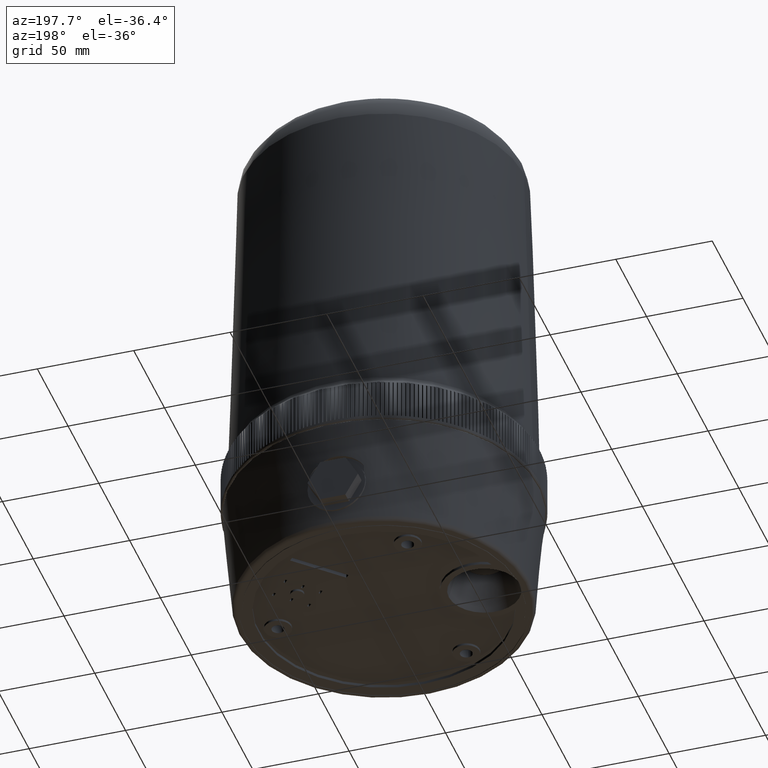
[diagram: clean part render]
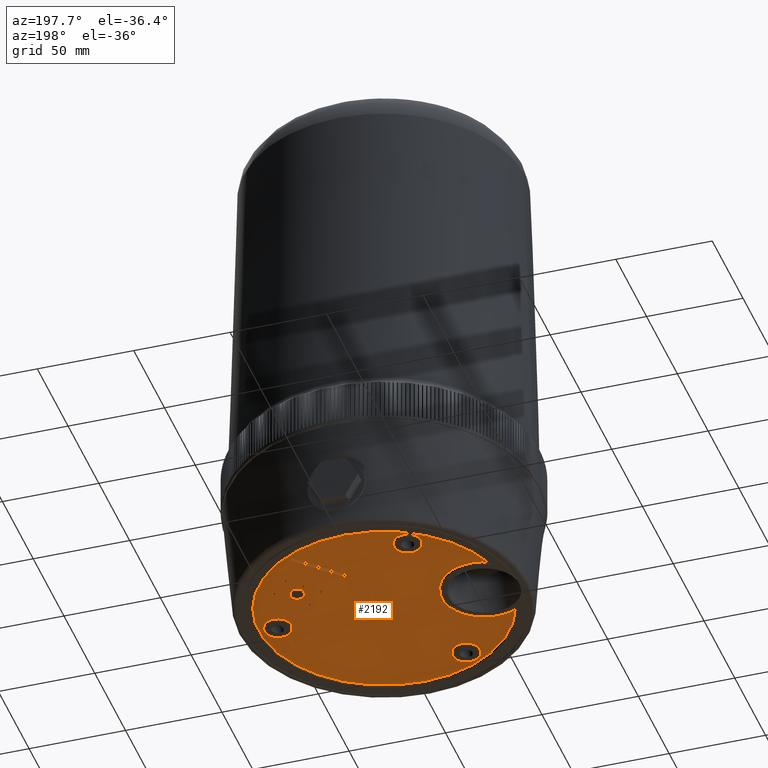
[diagram: same view with one face highlighted and labeled with its STEP entity id]
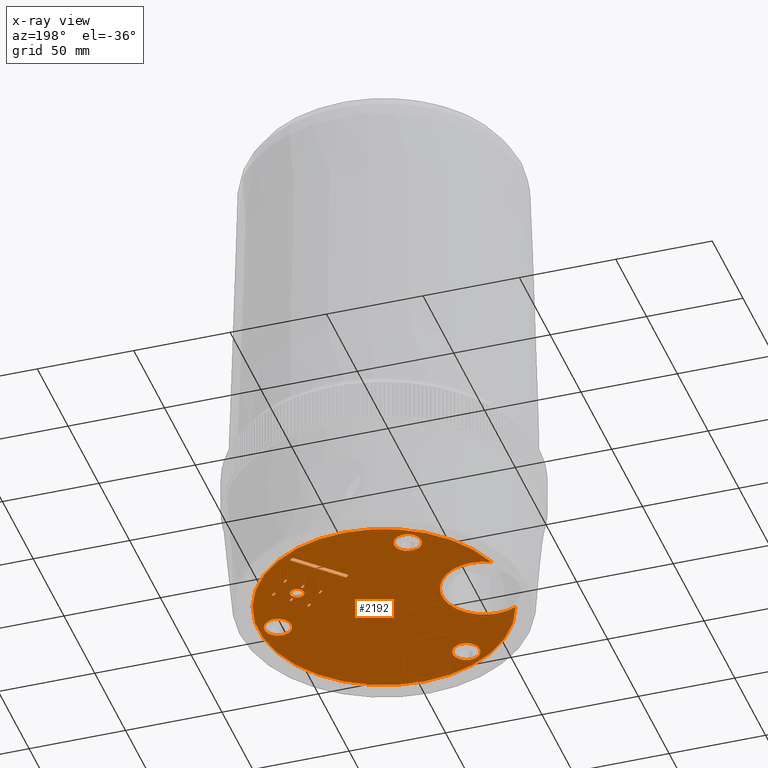
[diagram: x-ray of the same camera — body ghosted, the highlighted face saturated]
A machine part, auxiliary view. The second image highlights one B-rep face of the part: STEP entity #2192.
The next image is the same camera in x-ray: the body ghosted, the highlighted face saturated — about 0% of this face is hidden behind the body in this view.
In plain terms, the highlighted planar face has unit normal (0, 0, -1).
Its self-contained STEP definition (entity closure, byte-faithful):
#1124=FACE_BOUND('',#5087,.T.);
#1125=FACE_BOUND('',#5088,.T.);
#1126=FACE_BOUND('',#5089,.T.);
#1127=FACE_BOUND('',#5090,.T.);
#1128=FACE_BOUND('',#5091,.T.);
#1129=FACE_BOUND('',#5092,.T.);
#1130=FACE_BOUND('',#5093,.T.);
#1131=FACE_BOUND('',#5094,.T.);
#1132=FACE_BOUND('',#5095,.T.);
#1133=FACE_BOUND('',#5096,.T.);
#1134=FACE_BOUND('',#5097,.T.);
#1135=FACE_BOUND('',#5098,.T.);
#2192=ADVANCED_FACE('',(#1124,#1125,#1126,#1127,#1128,#1129,#1130,#1131,
#1132,#1133,#1134,#1135),#2986,.T.);
#2986=PLANE('',#20200);
#5087=EDGE_LOOP('',(#13325,#13326));
#5088=EDGE_LOOP('',(#13327,#13328,#13329,#13330));
#5089=EDGE_LOOP('',(#13331,#13332,#13333,#13334));
#5090=EDGE_LOOP('',(#13335,#13336,#13337,#13338));
#5091=EDGE_LOOP('',(#13339,#13340,#13341,#13342));
#5092=EDGE_LOOP('',(#13343,#13344,#13345,#13346));
#5093=EDGE_LOOP('',(#13347,#13348,#13349,#13350));
#5094=EDGE_LOOP('',(#13351,#13352,#13353,#13354));
#5095=EDGE_LOOP('',(#13355));
#5096=EDGE_LOOP('',(#13356));
#5097=EDGE_LOOP('',(#13357));
#5098=EDGE_LOOP('',(#13358));
#6835=LINE('',#31349,#8175);
#6838=LINE('',#31355,#8178);
#6841=LINE('',#31361,#8181);
#6844=LINE('',#31366,#8184);
#6847=LINE('',#31374,#8187);
#6850=LINE('',#31380,#8190);
#6853=LINE('',#31386,#8193);
#6856=LINE('',#31391,#8196);
#6859=LINE('',#31399,#8199);
#6862=LINE('',#31405,#8202);
#6865=LINE('',#31411,#8205);
#6868=LINE('',#31416,#8208);
#6871=LINE('',#31424,#8211);
#6874=LINE('',#31430,#8214);
#6877=LINE('',#31436,#8217);
#6880=LINE('',#31441,#8220);
#6883=LINE('',#31449,#8223);
#6886=LINE('',#31455,#8226);
#6889=LINE('',#31461,#8229);
#6892=LINE('',#31466,#8232);
#6895=LINE('',#31474,#8235);
#6898=LINE('',#31480,#8238);
#6901=LINE('',#31486,#8241);
#6904=LINE('',#31491,#8244);
#6907=LINE('',#31499,#8247);
#6910=LINE('',#31505,#8250);
#6913=LINE('',#31511,#8253);
#6916=LINE('',#31516,#8256);
#8175=VECTOR('',#24922,1.);
#8178=VECTOR('',#24927,1.);
#8181=VECTOR('',#24932,1.);
#8184=VECTOR('',#24937,1.);
#8187=VECTOR('',#24944,1.);
#8190=VECTOR('',#24949,1.);
#8193=VECTOR('',#24954,1.);
#8196=VECTOR('',#24959,1.);
#8199=VECTOR('',#24966,1.);
#8202=VECTOR('',#24971,1.);
#8205=VECTOR('',#24976,1.);
#8208=VECTOR('',#24981,1.);
#8211=VECTOR('',#24988,1.);
#8214=VECTOR('',#24993,1.);
#8217=VECTOR('',#24998,1.);
#8220=VECTOR('',#25003,1.);
#8223=VECTOR('',#25010,1.);
#8226=VECTOR('',#25015,1.);
#8229=VECTOR('',#25020,1.);
#8232=VECTOR('',#25025,1.);
#8235=VECTOR('',#25032,1.);
#8238=VECTOR('',#25037,1.);
#8241=VECTOR('',#25042,1.);
#8244=VECTOR('',#25047,1.);
#8247=VECTOR('',#25054,1.);
#8250=VECTOR('',#25059,1.);
#8253=VECTOR('',#25064,1.);
#8256=VECTOR('',#25069,1.);
#13325=ORIENTED_EDGE('',*,*,#17478,.F.);
#13326=ORIENTED_EDGE('',*,*,#17490,.T.);
#13327=ORIENTED_EDGE('',*,*,#17505,.T.);
#13328=ORIENTED_EDGE('',*,*,#17514,.T.);
#13329=ORIENTED_EDGE('',*,*,#17511,.T.);
#13330=ORIENTED_EDGE('',*,*,#17508,.T.);
#13331=ORIENTED_EDGE('',*,*,#17517,.T.);
#13332=ORIENTED_EDGE('',*,*,#17526,.T.);
#13333=ORIENTED_EDGE('',*,*,#17523,.T.);
#13334=ORIENTED_EDGE('',*,*,#17520,.T.);
#13335=ORIENTED_EDGE('',*,*,#17529,.T.);
#13336=ORIENTED_EDGE('',*,*,#17538,.T.);
#13337=ORIENTED_EDGE('',*,*,#17535,.T.);
#13338=ORIENTED_EDGE('',*,*,#17532,.T.);
#13339=ORIENTED_EDGE('',*,*,#17541,.T.);
#13340=ORIENTED_EDGE('',*,*,#17550,.T.);
#13341=ORIENTED_EDGE('',*,*,#17547,.T.);
#13342=ORIENTED_EDGE('',*,*,#17544,.T.);
#13343=ORIENTED_EDGE('',*,*,#17553,.T.);
#13344=ORIENTED_EDGE('',*,*,#17562,.T.);
#13345=ORIENTED_EDGE('',*,*,#17559,.T.);
#13346=ORIENTED_EDGE('',*,*,#17556,.T.);
#13347=ORIENTED_EDGE('',*,*,#17565,.T.);
#13348=ORIENTED_EDGE('',*,*,#17574,.T.);
#13349=ORIENTED_EDGE('',*,*,#17571,.T.);
#13350=ORIENTED_EDGE('',*,*,#17568,.T.);
#13351=ORIENTED_EDGE('',*,*,#17577,.T.);
#13352=ORIENTED_EDGE('',*,*,#17586,.T.);
#13353=ORIENTED_EDGE('',*,*,#17583,.T.);
#13354=ORIENTED_EDGE('',*,*,#17580,.T.);
#13355=ORIENTED_EDGE('',*,*,#17501,.T.);
#13356=ORIENTED_EDGE('',*,*,#17467,.T.);
#13357=ORIENTED_EDGE('',*,*,#17465,.T.);
#13358=ORIENTED_EDGE('',*,*,#17463,.T.);
#14932=VERTEX_POINT('',#31076);
#14934=VERTEX_POINT('',#31081);
#14936=VERTEX_POINT('',#31086);
#14946=VERTEX_POINT('',#31111);
#14947=VERTEX_POINT('',#31113);
#14961=VERTEX_POINT('',#31340);
#14965=VERTEX_POINT('',#31348);
#14966=VERTEX_POINT('',#31350);
#14968=VERTEX_POINT('',#31356);
#14970=VERTEX_POINT('',#31362);
#14973=VERTEX_POINT('',#31373);
#14974=VERTEX_POINT('',#31375);
#14976=VERTEX_POINT('',#31381);
#14978=VERTEX_POINT('',#31387);
#14981=VERTEX_POINT('',#31398);
#14982=VERTEX_POINT('',#31400);
#14984=VERTEX_POINT('',#31406);
#14986=VERTEX_POINT('',#31412);
#14989=VERTEX_POINT('',#31423);
#14990=VERTEX_POINT('',#31425);
#14992=VERTEX_POINT('',#31431);
#14994=VERTEX_POINT('',#31437);
#14997=VERTEX_POINT('',#31448);
#14998=VERTEX_POINT('',#31450);
#15000=VERTEX_POINT('',#31456);
#15002=VERTEX_POINT('',#31462);
#15005=VERTEX_POINT('',#31473);
#15006=VERTEX_POINT('',#31475);
#15008=VERTEX_POINT('',#31481);
#15010=VERTEX_POINT('',#31487);
#15013=VERTEX_POINT('',#31498);
#15014=VERTEX_POINT('',#31500);
#15016=VERTEX_POINT('',#31506);
#15018=VERTEX_POINT('',#31512);
#17463=EDGE_CURVE('',#14932,#14932,#18374,.T.);
#17465=EDGE_CURVE('',#14934,#14934,#18376,.T.);
#17467=EDGE_CURVE('',#14936,#14936,#18378,.T.);
#17478=EDGE_CURVE('',#14946,#14947,#18388,.T.);
#17490=EDGE_CURVE('',#14946,#14947,#18391,.T.);
#17501=EDGE_CURVE('',#14961,#14961,#18400,.T.);
#17505=EDGE_CURVE('',#14966,#14965,#6835,.T.);
#17508=EDGE_CURVE('',#14968,#14966,#6838,.T.);
#17511=EDGE_CURVE('',#14970,#14968,#6841,.T.);
#17514=EDGE_CURVE('',#14965,#14970,#6844,.T.);
#17517=EDGE_CURVE('',#14974,#14973,#6847,.T.);
#17520=EDGE_CURVE('',#14976,#14974,#6850,.T.);
#17523=EDGE_CURVE('',#14978,#14976,#6853,.T.);
#17526=EDGE_CURVE('',#14973,#14978,#6856,.T.);
#17529=EDGE_CURVE('',#14982,#14981,#6859,.T.);
#17532=EDGE_CURVE('',#14984,#14982,#6862,.T.);
#17535=EDGE_CURVE('',#14986,#14984,#6865,.T.);
#17538=EDGE_CURVE('',#14981,#14986,#6868,.T.);
#17541=EDGE_CURVE('',#14990,#14989,#6871,.T.);
#17544=EDGE_CURVE('',#14992,#14990,#6874,.T.);
#17547=EDGE_CURVE('',#14994,#14992,#6877,.T.);
#17550=EDGE_CURVE('',#14989,#14994,#6880,.T.);
#17553=EDGE_CURVE('',#14998,#14997,#6883,.T.);
#17556=EDGE_CURVE('',#15000,#14998,#6886,.T.);
#17559=EDGE_CURVE('',#15002,#15000,#6889,.T.);
#17562=EDGE_CURVE('',#14997,#15002,#6892,.T.);
#17565=EDGE_CURVE('',#15006,#15005,#6895,.T.);
#17568=EDGE_CURVE('',#15008,#15006,#6898,.T.);
#17571=EDGE_CURVE('',#15010,#15008,#6901,.T.);
#17574=EDGE_CURVE('',#15005,#15010,#6904,.T.);
#17577=EDGE_CURVE('',#15014,#15013,#6907,.T.);
#17580=EDGE_CURVE('',#15016,#15014,#6910,.T.);
#17583=EDGE_CURVE('',#15018,#15016,#6913,.T.);
#17586=EDGE_CURVE('',#15013,#15018,#6916,.T.);
#18374=CIRCLE('',#20103,7.);
#18376=CIRCLE('',#20106,7.);
#18378=CIRCLE('',#20109,7.);
#18388=CIRCLE('',#20124,65.);
#18391=CIRCLE('',#20130,22.);
#18400=CIRCLE('',#20144,3.5);
#20103=AXIS2_PLACEMENT_3D('',#31075,#24830,#24831);
#20106=AXIS2_PLACEMENT_3D('',#31080,#24836,#24837);
#20109=AXIS2_PLACEMENT_3D('',#31085,#24842,#24843);
#20124=AXIS2_PLACEMENT_3D('',#31112,#24873,#24874);
#20130=AXIS2_PLACEMENT_3D('',#31310,#24886,#24887);
#20144=AXIS2_PLACEMENT_3D('',#31339,#24914,#24915);
#20200=AXIS2_PLACEMENT_3D('',#31549,#25118,#25119);
#24830=DIRECTION('',(0.,0.,1.));
#24831=DIRECTION('',(1.,0.,0.));
#24836=DIRECTION('',(0.,0.,1.));
#24837=DIRECTION('',(-0.500000000000004,0.866025403784436,0.));
#24842=DIRECTION('',(0.,0.,1.));
#24843=DIRECTION('',(-0.499999999999992,-0.866025403784443,0.));
#24873=DIRECTION('',(0.,0.,1.));
#24874=DIRECTION('',(-1.,0.,0.));
#24886=DIRECTION('',(0.,0.,1.));
#24887=DIRECTION('',(0.,-1.,0.));
#24914=DIRECTION('',(0.,0.,1.));
#24915=DIRECTION('',(1.,0.,0.));
#24922=DIRECTION('',(-0.707106781186516,-0.70710678118658,0.));
#24927=DIRECTION('',(-0.70710678118657,0.707106781186525,0.));
#24932=DIRECTION('',(0.707106781186523,0.707106781186573,0.));
#24937=DIRECTION('',(0.707106781186567,-0.707106781186528,0.));
#24944=DIRECTION('',(-0.707106781186519,-0.707106781186576,0.));
#24949=DIRECTION('',(-0.70710678118657,0.707106781186525,0.));
#24954=DIRECTION('',(0.707106781186523,0.707106781186573,0.));
#24959=DIRECTION('',(0.707106781186565,-0.70710678118653,0.));
#24966=DIRECTION('',(-0.707106781186517,-0.707106781186578,0.));
#24971=DIRECTION('',(-0.707106781186569,0.707106781186526,0.));
#24976=DIRECTION('',(0.707106781186524,0.707106781186571,0.));
#24981=DIRECTION('',(0.707106781186566,-0.707106781186529,0.));
#24988=DIRECTION('',(-0.707106781186517,-0.707106781186578,0.));
#24993=DIRECTION('',(-0.707106781186569,0.707106781186526,0.));
#24998=DIRECTION('',(0.707106781186524,0.707106781186571,0.));
#25003=DIRECTION('',(0.707106781186566,-0.707106781186529,0.));
#25010=DIRECTION('',(-0.707106781186516,-0.70710678118658,0.));
#25015=DIRECTION('',(-0.707106781186568,0.707106781186527,0.));
#25020=DIRECTION('',(0.707106781186526,0.707106781186569,0.));
#25025=DIRECTION('',(0.707106781186567,-0.707106781186528,0.));
#25032=DIRECTION('',(-0.707106781186517,-0.707106781186578,0.));
#25037=DIRECTION('',(-0.707106781186569,0.707106781186526,0.));
#25042=DIRECTION('',(0.707106781186524,0.707106781186571,0.));
#25047=DIRECTION('',(0.707106781186566,-0.707106781186529,0.));
#25054=DIRECTION('',(0.707106781186526,0.707106781186569,0.));
#25059=DIRECTION('',(0.70710678118657,-0.707106781186525,0.));
#25064=DIRECTION('',(-0.707106781186526,-0.707106781186569,0.));
#25069=DIRECTION('',(-0.707106781186568,0.707106781186527,0.));
#25118=DIRECTION('',(0.,0.,-1.));
#25119=DIRECTION('',(0.,-1.,0.));
#31075=CARTESIAN_POINT('',(55.,0.,-39.));
#31076=CARTESIAN_POINT('',(62.,0.,-39.));
#31080=CARTESIAN_POINT('',(-27.5000000000002,47.631397208144,-39.));
#31081=CARTESIAN_POINT('',(-31.0000000000002,53.6935750346351,-39.));
#31085=CARTESIAN_POINT('',(-27.4999999999996,-47.6313972081444,-39.));
#31086=CARTESIAN_POINT('',(-30.9999999999995,-53.6935750346355,-39.));
#31111=CARTESIAN_POINT('',(-61.9711538461539,-19.6106116930688,-39.));
#31112=CARTESIAN_POINT('',(7.37257477290143E-015,0.,-39.));
#31113=CARTESIAN_POINT('',(-61.9711538461539,19.6106116930688,-39.));
#31310=CARTESIAN_POINT('',(-51.9999999999998,1.094488E-014,-39.));
#31339=CARTESIAN_POINT('',(37.3352380466502,24.1123412384612,-39.));
#31340=CARTESIAN_POINT('',(40.8352380466502,24.1123412384612,-39.));
#31348=CARTESIAN_POINT('',(38.7140962699636,35.8856691452172,-39.));
#31349=CARTESIAN_POINT('',(39.4212030511501,36.5927759264038,-39.));
#31350=CARTESIAN_POINT('',(39.4212030511501,36.5927759264038,-39.));
#31355=CARTESIAN_POINT('',(41.1182593259979,34.8957196515561,-39.));
#31356=CARTESIAN_POINT('',(41.1182593259979,34.8957196515561,-39.));
#31361=CARTESIAN_POINT('',(40.4111525448114,34.1886128703696,-39.));
#31362=CARTESIAN_POINT('',(40.4111525448114,34.1886128703696,-39.));
#31366=CARTESIAN_POINT('',(38.7140962699636,35.8856691452172,-39.));
#31373=CARTESIAN_POINT('',(47.4115096785584,27.1882557366229,-39.));
#31374=CARTESIAN_POINT('',(48.1186164597449,27.8953625178095,-39.));
#31375=CARTESIAN_POINT('',(48.1186164597449,27.8953625178095,-39.));
#31380=CARTESIAN_POINT('',(49.8156727345927,26.1983062429618,-39.));
#31381=CARTESIAN_POINT('',(49.8156727345927,26.1983062429618,-39.));
#31386=CARTESIAN_POINT('',(49.1085659534061,25.4911994617753,-39.));
#31387=CARTESIAN_POINT('',(49.1085659534061,25.4911994617753,-39.));
#31391=CARTESIAN_POINT('',(47.4115096785584,27.1882557366229,-39.));
#31398=CARTESIAN_POINT('',(31.7844498143356,28.9560226895889,-39.));
#31399=CARTESIAN_POINT('',(32.4915565955222,29.6631294707754,-39.));
#31400=CARTESIAN_POINT('',(32.4915565955222,29.6631294707754,-39.));
#31405=CARTESIAN_POINT('',(34.1886128703699,27.9660731959278,-39.));
#31406=CARTESIAN_POINT('',(34.1886128703699,27.9660731959278,-39.));
#31411=CARTESIAN_POINT('',(33.4815060891834,27.2589664147412,-39.));
#31412=CARTESIAN_POINT('',(33.4815060891834,27.2589664147412,-39.));
#31416=CARTESIAN_POINT('',(31.7844498143356,28.9560226895889,-39.));
#31423=CARTESIAN_POINT('',(40.4818632229304,20.2586092809946,-39.));
#31424=CARTESIAN_POINT('',(41.1889700041169,20.9657160621811,-39.));
#31425=CARTESIAN_POINT('',(41.1889700041169,20.9657160621811,-39.));
#31430=CARTESIAN_POINT('',(42.8860262789647,19.2686597873335,-39.));
#31431=CARTESIAN_POINT('',(42.8860262789647,19.2686597873335,-39.));
#31436=CARTESIAN_POINT('',(42.1789194977782,18.5615530061469,-39.));
#31437=CARTESIAN_POINT('',(42.1789194977782,18.5615530061469,-39.));
#31441=CARTESIAN_POINT('',(40.4818632229304,20.2586092809946,-39.));
#31448=CARTESIAN_POINT('',(24.8548033587077,22.0263762339605,-39.));
#31449=CARTESIAN_POINT('',(25.5619101398942,22.7334830151471,-39.));
#31450=CARTESIAN_POINT('',(25.5619101398942,22.7334830151471,-39.));
#31455=CARTESIAN_POINT('',(27.258966414742,21.0364267402994,-39.));
#31456=CARTESIAN_POINT('',(27.258966414742,21.0364267402994,-39.));
#31461=CARTESIAN_POINT('',(26.5518596335554,20.3293199591128,-39.));
#31462=CARTESIAN_POINT('',(26.5518596335554,20.3293199591128,-39.));
#31466=CARTESIAN_POINT('',(24.8548033587077,22.0263762339605,-39.));
#31473=CARTESIAN_POINT('',(33.5522167673025,13.3289628253662,-39.));
#31474=CARTESIAN_POINT('',(34.259323548489,14.0360696065528,-39.));
#31475=CARTESIAN_POINT('',(34.259323548489,14.0360696065528,-39.));
#31480=CARTESIAN_POINT('',(35.9563798233367,12.3390133317051,-39.));
#31481=CARTESIAN_POINT('',(35.9563798233367,12.3390133317051,-39.));
#31486=CARTESIAN_POINT('',(35.2492730421502,11.6319065505185,-39.));
#31487=CARTESIAN_POINT('',(35.2492730421502,11.6319065505185,-39.));
#31491=CARTESIAN_POINT('',(33.5522167673025,13.3289628253662,-39.));
#31498=CARTESIAN_POINT('',(32.3854905783435,51.1945309579058,-39.));
#31499=CARTESIAN_POINT('',(10.2530483272053,29.0620887067662,-39.));
#31500=CARTESIAN_POINT('',(10.2530483272053,29.0620887067662,-39.));
#31505=CARTESIAN_POINT('',(8.55599205235749,30.7591449816138,-39.));
#31506=CARTESIAN_POINT('',(8.55599205235749,30.7591449816138,-39.));
#31511=CARTESIAN_POINT('',(30.6884343034957,52.8915872327534,-39.));
#31512=CARTESIAN_POINT('',(30.6884343034957,52.8915872327534,-39.));
#31516=CARTESIAN_POINT('',(32.3854905783435,51.1945309579058,-39.));
#31549=CARTESIAN_POINT('',(-32.1,0.,-39.));